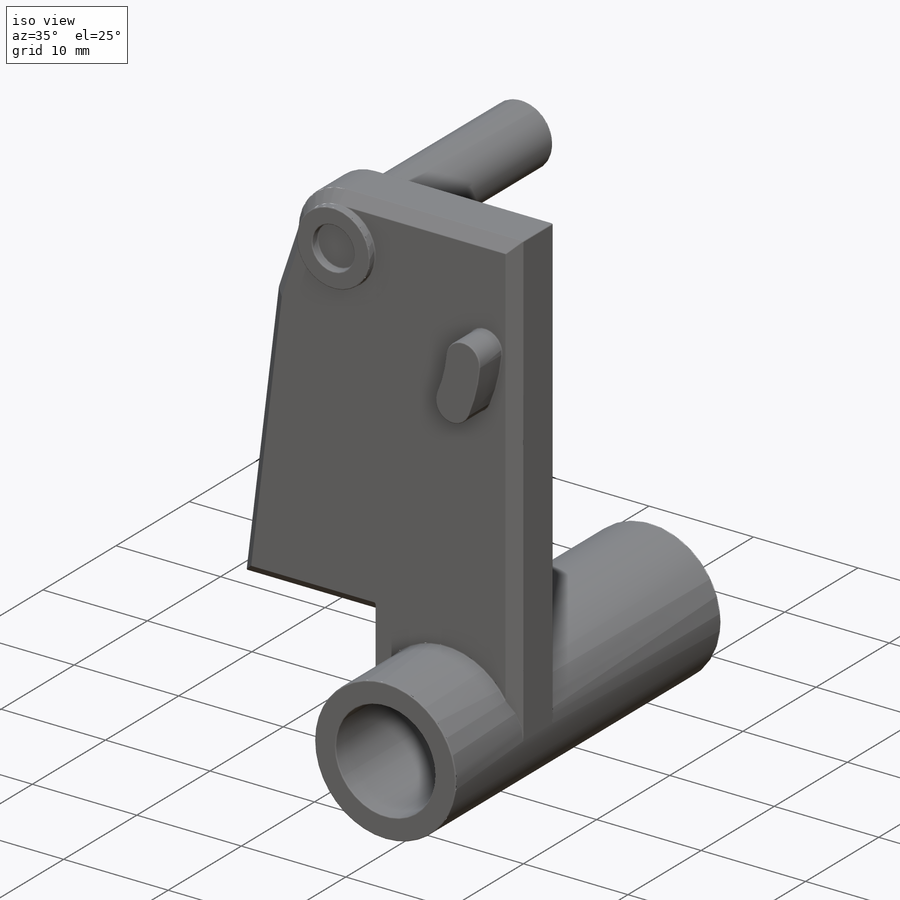
[diagram: iso view]
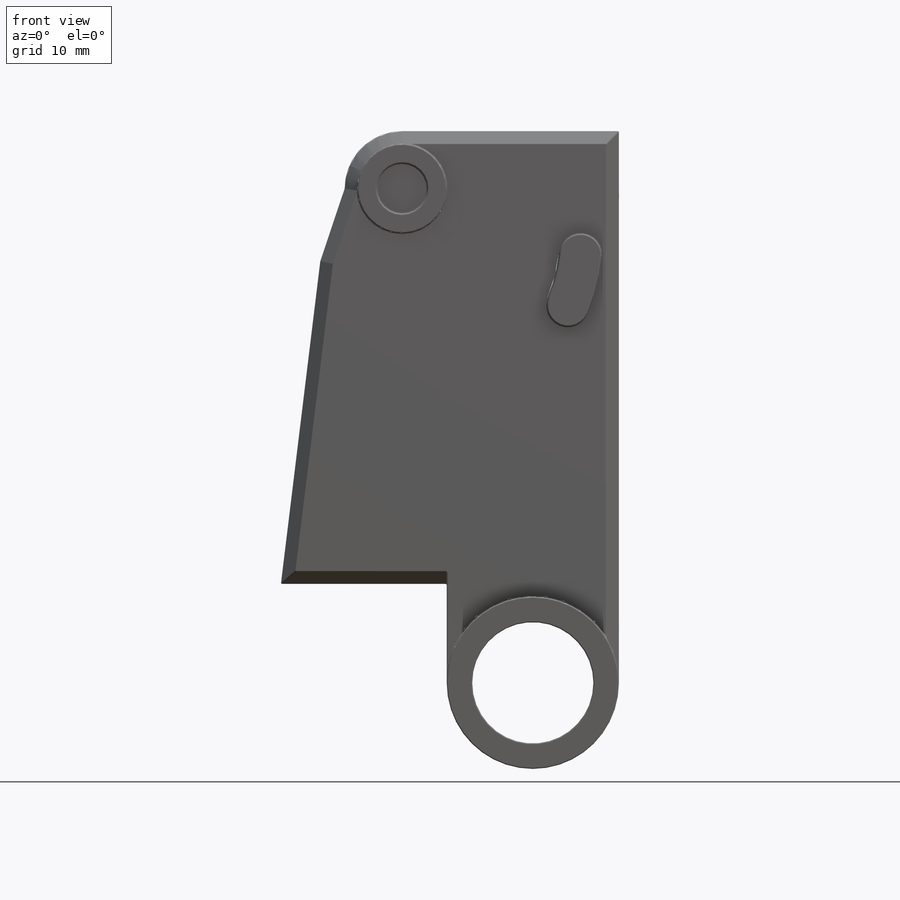
[diagram: front view]
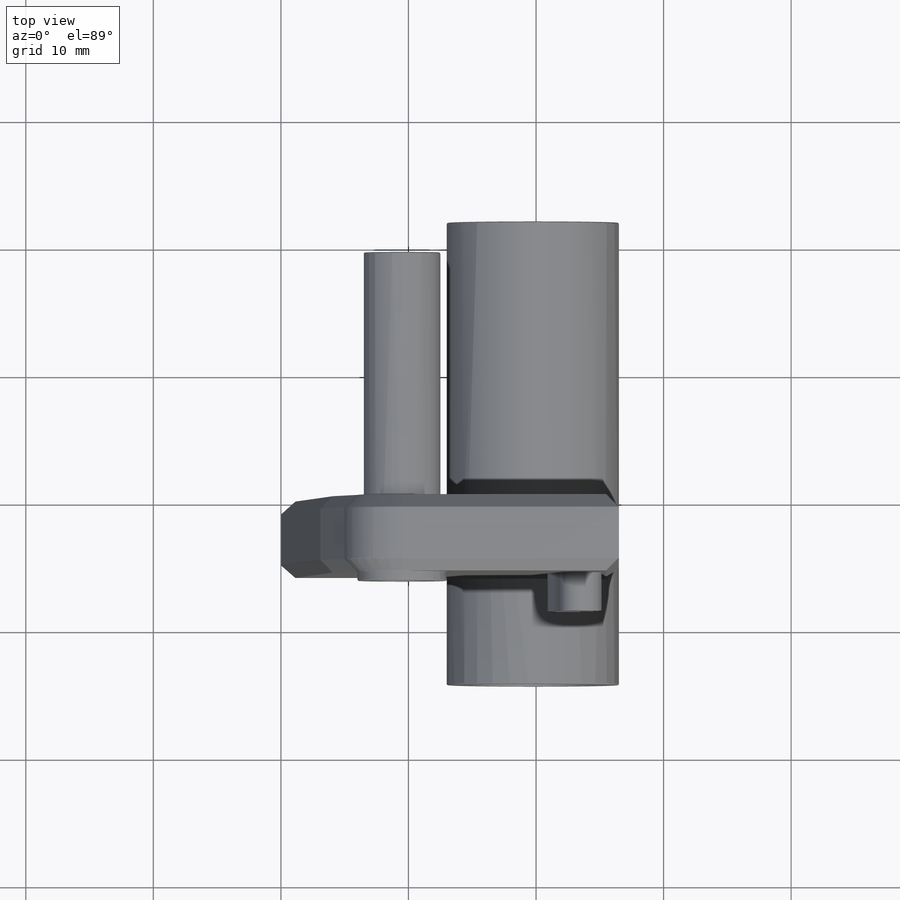
[diagram: top view]
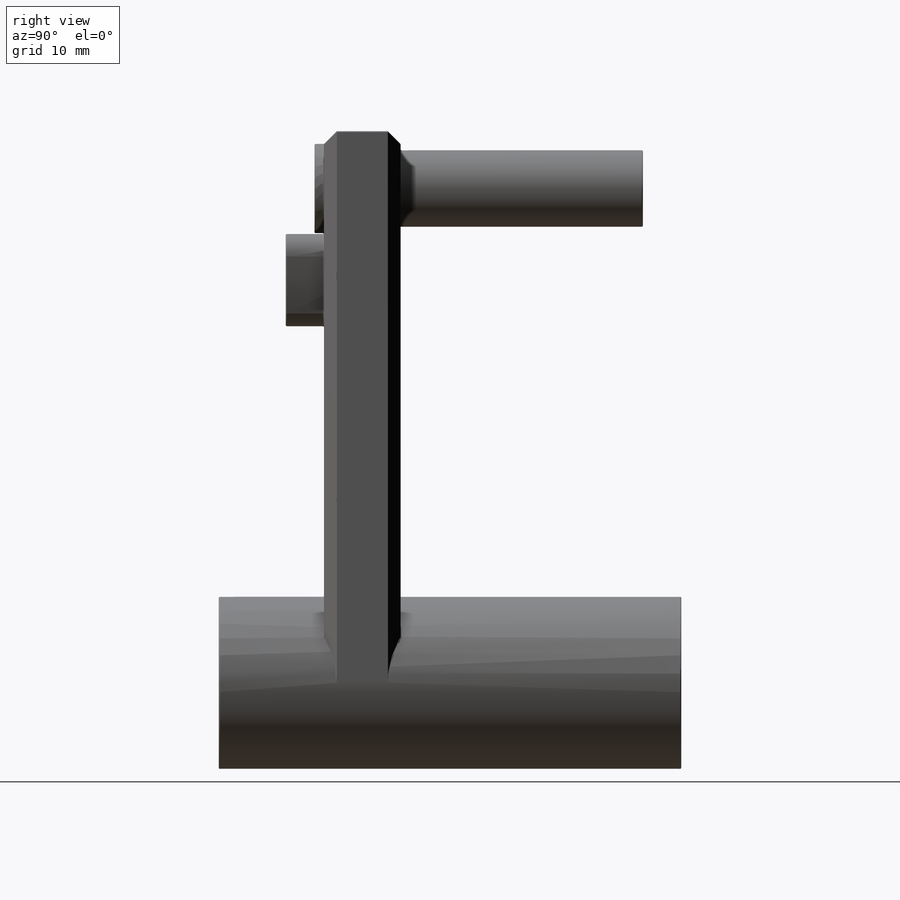
[diagram: right view]
SOLIDWORKS PART (.sldprt)
format: sldprt  version: not decoded by parser v0  size: 1,101,824 bytes
history: native  units: mm
features: sketch x11, fillet x11, extrude x8, cut_extrude x3, material x1, chamfer x1 (+11 scaffold rows collapsed)
feature tree (46):
  scaffold x11  (default folders/planes/origin — collapsed)
  material  "Material <not specified>"
  sketch  "Sketch2"  dims[c1.D1=13.5mm c1.D7=13.5mm c1.D10=4.5mm c2.D1=~70.27299mm c2.D2=24.75mm c2.D3=6.0mm c2.D4=35.5mm c2.D5=13.0mm c2.D6=6.75mm c2.D7=6.75mm c2.D8=0.0mm c2.D9=50.0mm c2.D11=17.0mm c3.D2=0.0mm c3.D12=25.5mm]
  extrude  "Boss-Extrude1"  Depth=6mm
  sketch  "Sketch3"  dims[D1=13.5mm]
  extrude  "Boss-Extrude2"  Depth=8.25mm
  sketch  "Sketch4"  dims[D1=9.5mm]
  cut_extrude  "Cut-Extrude1"  Depth=36.25mm
  sketch  "Sketch5"  dims[D1=7.0mm D2=4.0mm]
  extrude  "Boss-Extrude3"  Depth=0.75mm
  sketch  "Sketch6"  dims[D1=6.0mm D2=4.0mm]
  extrude  "Boss-Extrude4"  Depth=19mm
  sketch  "Sketch7"  dims[D1=~7.137451mm D2=4.0mm D3=3.0mm D4=4.0mm]
  extrude  "Boss-Extrude5"  Depth=3mm
  sketch  "Sketch8"  dims[D1=1.5mm]
  cut_extrude  "Cut-Extrude2"  Depth=4mm
  sketch  "Sketch9"  dims[D1=6.0mm D2=4.0mm]
  extrude  "Boss-Extrude6"  [1 undecoded]
  sketch  "Sketch10"  dims[c1.D1=32.5mm c1.D2=~1.750235mm c2.D1=1.25mm c2.D2=1.25mm c2.D3=16.0mm c2.D4=14.75mm c2.D5=10.5mm]
  extrude  "Boss-Extrude7"  Depth=3mm
  chamfer  "Chamfer1"  Distance=1mm
  fillet  "Fillet2"  Radius=0.1mm
  fillet  "Fillet4"  Radius=0.1mm
  sketch  "Sketch11"  dims[D1=0.0mm]
  cut_extrude  "Cut-Extrude3"  [1 undecoded]
  sketch  "Sketch13"  dims[D1=0.0mm]
  extrude  "Boss-Extrude8"  Depth=10mm
  fillet  "Fillet6"  Radius=0.1mm
  fillet  "Fillet8"  Radius=0.1mm
  fillet  "Fillet9"  Radius=0.1mm
  fillet  "Fillet10"  Radius=0.1mm
  fillet  "Fillet11"  Radius=0.1mm
  fillet  "Fillet12"  Radius=0.1mm
  fillet  "Fillet13"  Radius=0.1mm
  fillet  "Fillet14"  Radius=0.1mm
  fillet  "Fillet15"  Radius=0.1mm
decode coverage: 32 of 34 modeling features carry decoded parameters
note: ~ marks probable driven/reference dimensions
note: 2 parameter values undecoded
note: suppression state not decoded; provenance and decode notes live in map.json
